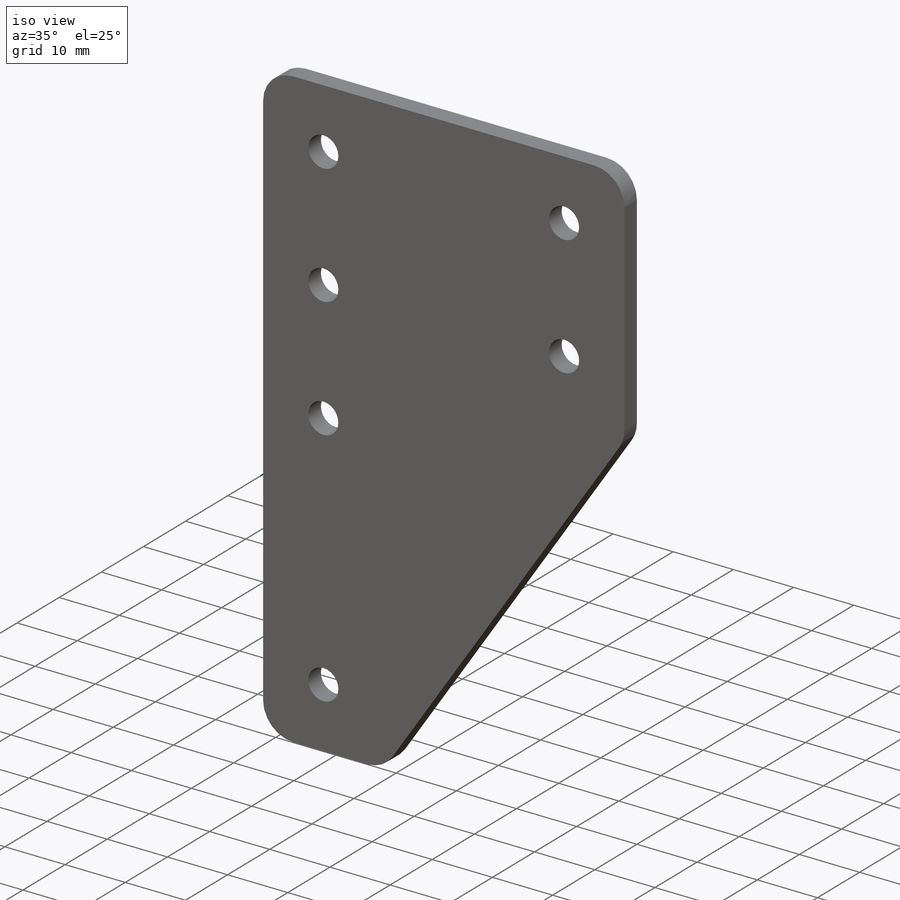
[diagram: iso view]
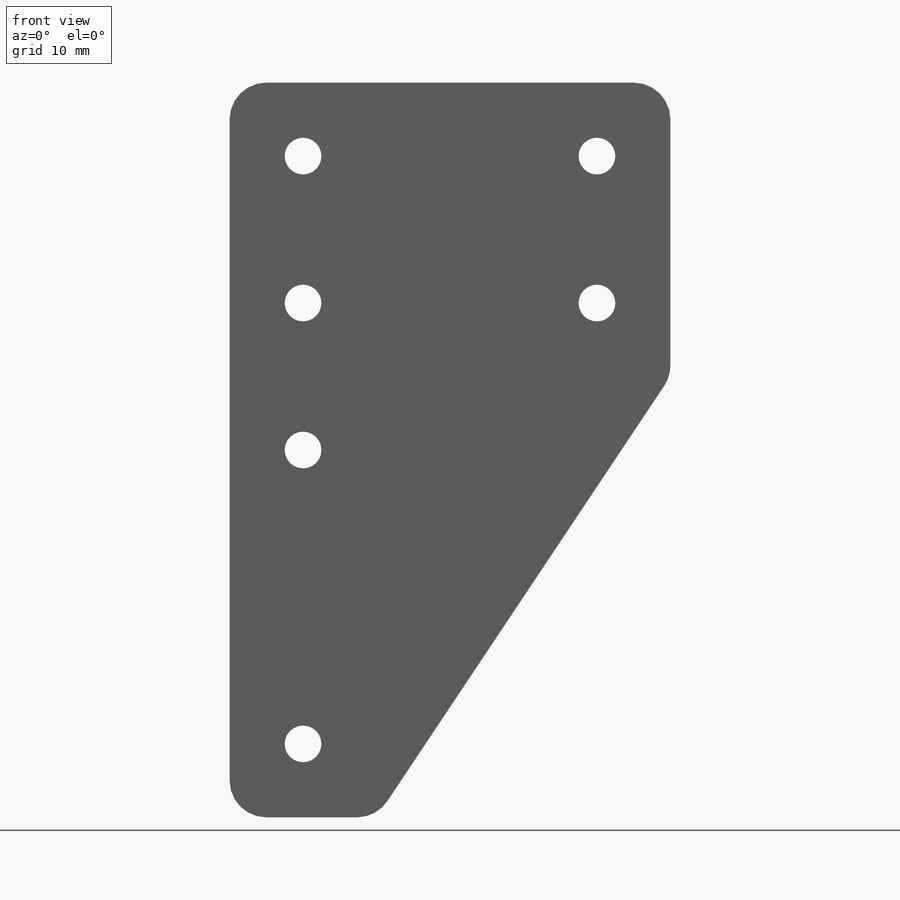
[diagram: front view]
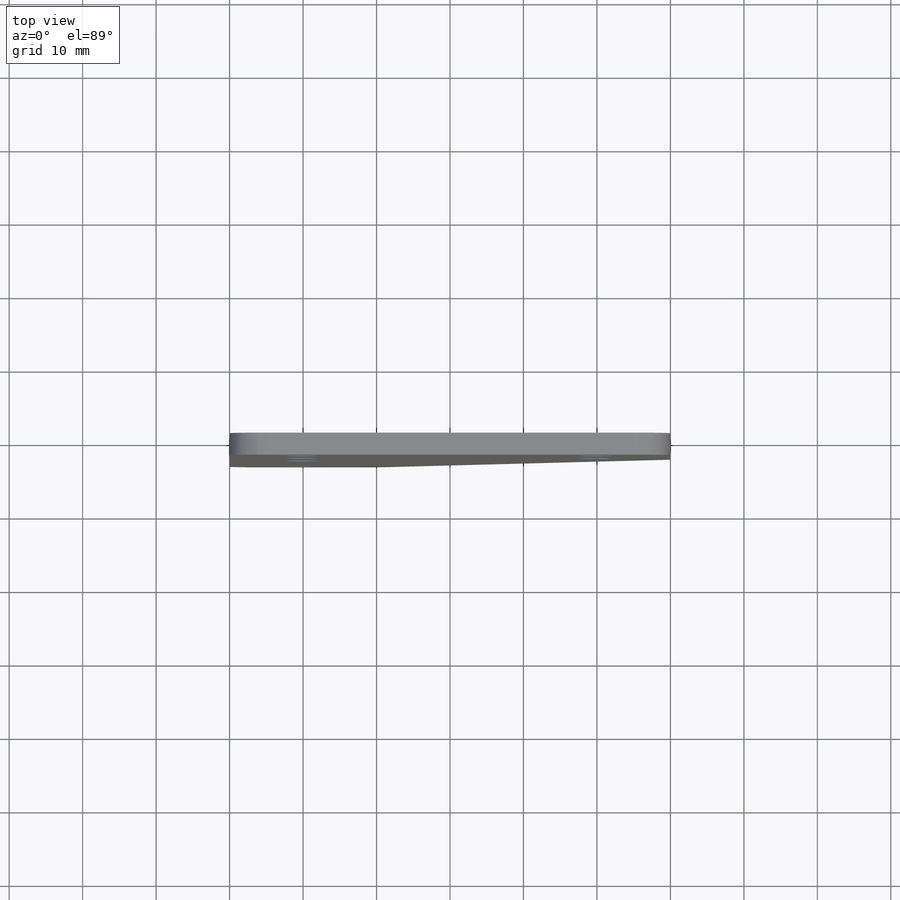
[diagram: top view]
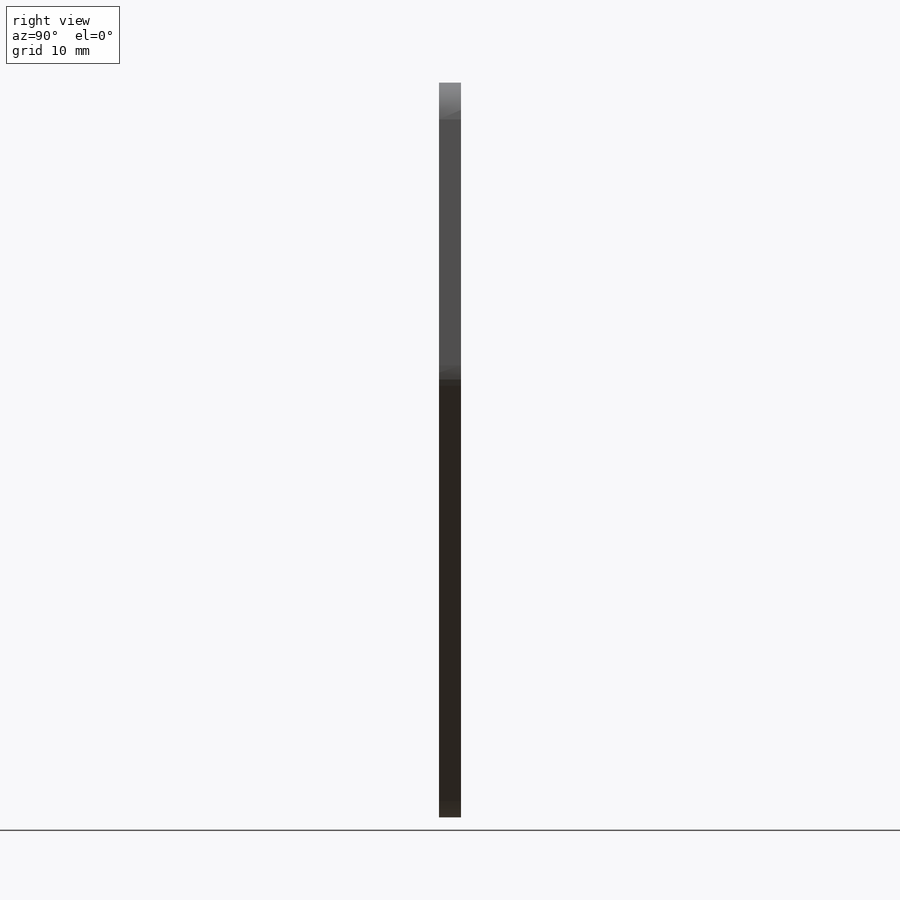
[diagram: right view]
SOLIDWORKS PART (.sldprt)
format: sldprt  version: not decoded by parser v0  size: 201,728 bytes
history: native  units: mm
features: sketch x3, cut_extrude x2, pattern_linear x2, material x1, extrude x1, fillet x1 (+13 scaffold rows collapsed)
feature tree (23):
  scaffold x13  (default folders/planes/origin — collapsed)
  material  "Material <not specified>"
  sketch  "Sketch1"  dims[D1=20.0mm D2=40.0mm 60=60.0mm D4=100.0mm]
  extrude  "Boss-Extrude1"  Depth=3mm
  sketch  "Sketch3"  dims[c1.D1=~7.445894mm c1.D2=5.0mm c1.D3=5.0mm c2.D1=10.0mm c2.D3=10.0mm]
  cut_extrude  "Cut-Extrude1"  [1 undecoded]
  pattern_linear  "LPattern1"  Count1=2 Count2=2 Spacing1=40mm Spacing2=20mm
  sketch  "Sketch4"  dims[c1.D1=5.0mm c1.D2=5.0mm c1.D3=5.0mm c2.D2=10.0mm c2.D3=10.0mm]
  cut_extrude  "Cut-Extrude2"  [1 undecoded]
  pattern_linear  "LPattern2"  Count1=2 Count2=1 Spacing1=40mm Spacing2=20mm
  fillet  "Fillet1"  Radius=5mm
decode coverage: 7 of 9 modeling features carry decoded parameters
note: ~ marks probable driven/reference dimensions
note: 2 parameter values undecoded
note: suppression state not decoded; provenance and decode notes live in map.json
